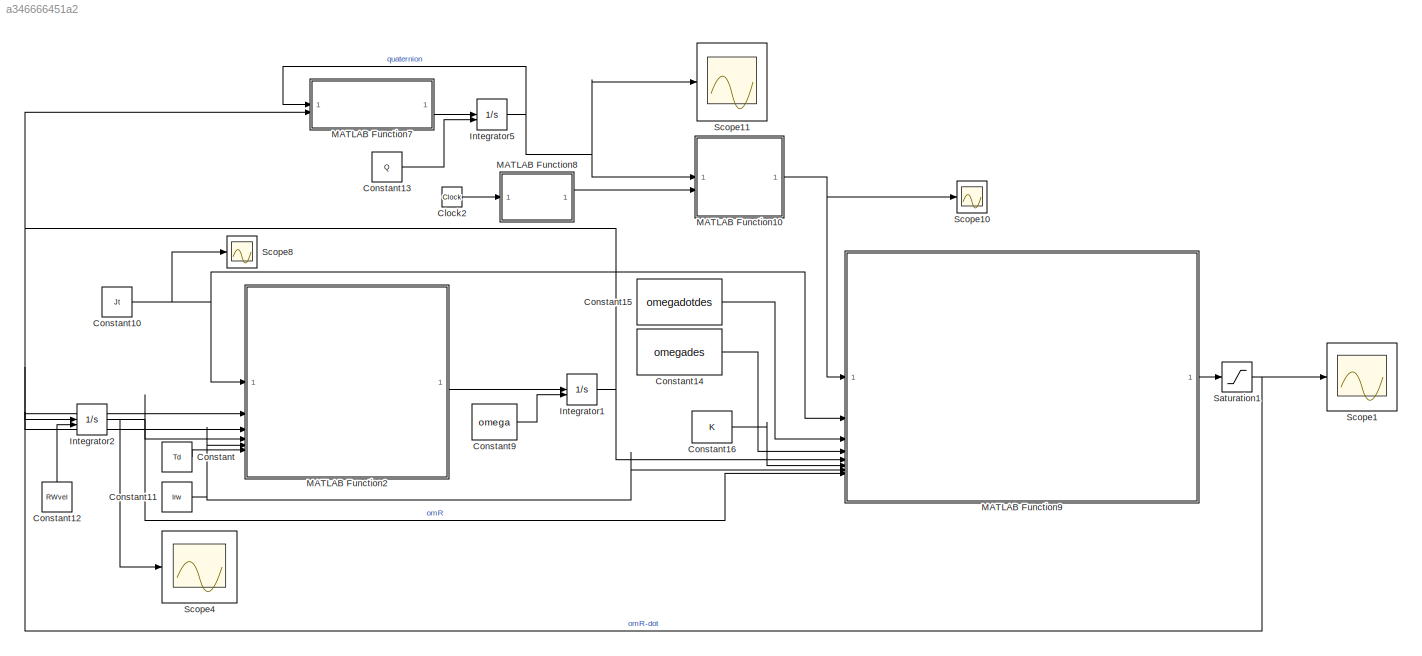
MODEL slx_a346666451a2
KIND model
CONFIG AbsTol = auto
CONFIG EnableMultiTasking = off
CONFIG FixedStep = auto
CONFIG MaxStep = auto
CONFIG MinStep = auto
CONFIG RelTol = 1e-3
CONFIG SampleTimeConstraint = Unconstrained
CONFIG SolverName = VariableStepAuto
CONFIG StartTime = 0.0
CONFIG StopTime = 200
BLOCK [Clock] Clock2
BLOCK [Constant] Constant
  Value = Td
BLOCK [Constant] Constant10
  Value = Jt
BLOCK [Constant] Constant11
  Value = Irw
BLOCK [Constant] Constant12
  NameLocation = right
  Value = RWvel
BLOCK [Constant] Constant13
  Value = Q
BLOCK [Constant] Constant14
  Value = omegades
BLOCK [Constant] Constant15
  Value = omegadotdes
BLOCK [Constant] Constant16
  Value = K
BLOCK [Constant] Constant9
  Value = omega
BLOCK [Integrator] Integrator1
  InitialConditionSource = external
BLOCK [Integrator] Integrator2
  InitialConditionSource = external
BLOCK [Integrator] Integrator5
  InitialConditionSource = external
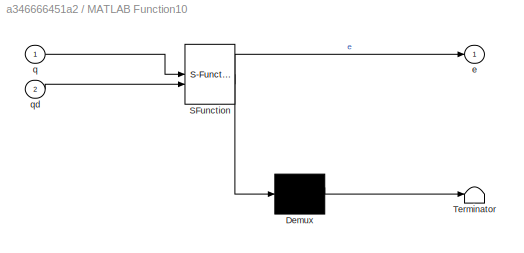
BLOCK [SubSystem] MATLAB Function10
  ErrorFcn = Stateflow.Translate.translate
  LibrarySourceBlock = simulink/User-Defined\nFunctions/MATLAB Function
  PermitHierarchicalResolution = ExplicitOnly
  SFBlockType = MATLAB Function
  TreatAsAtomicUnit = on
BLOCK [Demux] MATLAB Function10/ Demux 
  Outputs = 1
BLOCK [S-Function] MATLAB Function10/ SFunction 
  EnableBusSupport = on
  FunctionName = sf_sfun
  PortCounts = [2 2]
  SFcnIsStateOwnerBlock = off
  SFunctionDeploymentMode = off
  Tag = Stateflow S-Function 3
BLOCK [Terminator] MATLAB Function10/ Terminator 
BLOCK [Outport] MATLAB Function10/e
BLOCK [Inport] MATLAB Function10/q
BLOCK [Inport] MATLAB Function10/qd
  Port = 2
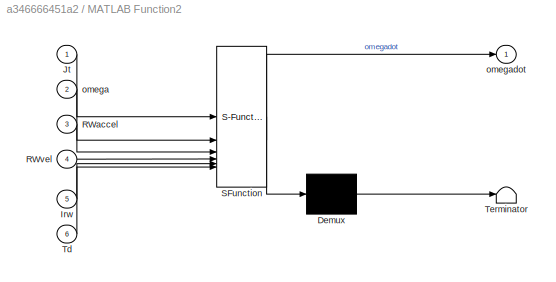
BLOCK [SubSystem] MATLAB Function2
  ErrorFcn = Stateflow.Translate.translate
  LibrarySourceBlock = simulink/User-Defined\nFunctions/MATLAB Function
  PermitHierarchicalResolution = ExplicitOnly
  SFBlockType = MATLAB Function
  TreatAsAtomicUnit = on
BLOCK [Demux] MATLAB Function2/ Demux 
  Outputs = 1
BLOCK [S-Function] MATLAB Function2/ SFunction 
  EnableBusSupport = on
  FunctionName = sf_sfun
  PortCounts = [6 2]
  SFcnIsStateOwnerBlock = off
  SFunctionDeploymentMode = off
  Tag = Stateflow S-Function 9
BLOCK [Terminator] MATLAB Function2/ Terminator 
BLOCK [Inport] MATLAB Function2/Irw
  Port = 5
BLOCK [Inport] MATLAB Function2/Jt
BLOCK [Inport] MATLAB Function2/RWaccel
  Port = 3
BLOCK [Inport] MATLAB Function2/RWvel
  Port = 4
BLOCK [Inport] MATLAB Function2/Td
  Port = 6
BLOCK [Inport] MATLAB Function2/omega
  Port = 2
BLOCK [Outport] MATLAB Function2/omegadot
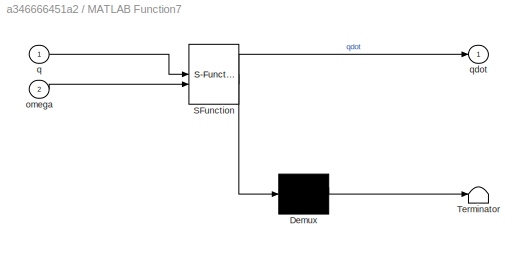
BLOCK [SubSystem] MATLAB Function7
  ErrorFcn = Stateflow.Translate.translate
  LibrarySourceBlock = simulink/User-Defined\nFunctions/MATLAB Function
  PermitHierarchicalResolution = ExplicitOnly
  SFBlockType = MATLAB Function
  TreatAsAtomicUnit = on
BLOCK [Demux] MATLAB Function7/ Demux 
  Outputs = 1
BLOCK [S-Function] MATLAB Function7/ SFunction 
  EnableBusSupport = on
  FunctionName = sf_sfun
  PortCounts = [2 2]
  SFcnIsStateOwnerBlock = off
  SFunctionDeploymentMode = off
  Tag = Stateflow S-Function 10
BLOCK [Terminator] MATLAB Function7/ Terminator 
BLOCK [Inport] MATLAB Function7/omega
  Port = 2
BLOCK [Inport] MATLAB Function7/q
BLOCK [Outport] MATLAB Function7/qdot
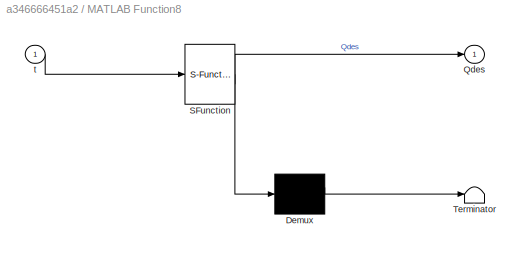
BLOCK [SubSystem] MATLAB Function8
  ErrorFcn = Stateflow.Translate.translate
  LibrarySourceBlock = simulink/User-Defined\nFunctions/MATLAB Function
  PermitHierarchicalResolution = ExplicitOnly
  SFBlockType = MATLAB Function
  TreatAsAtomicUnit = on
BLOCK [Demux] MATLAB Function8/ Demux 
  Outputs = 1
BLOCK [S-Function] MATLAB Function8/ SFunction 
  EnableBusSupport = on
  FunctionName = sf_sfun
  PortCounts = [1 2]
  SFcnIsStateOwnerBlock = off
  SFunctionDeploymentMode = off
  Tag = Stateflow S-Function 8
BLOCK [Terminator] MATLAB Function8/ Terminator 
BLOCK [Outport] MATLAB Function8/Qdes
BLOCK [Inport] MATLAB Function8/t
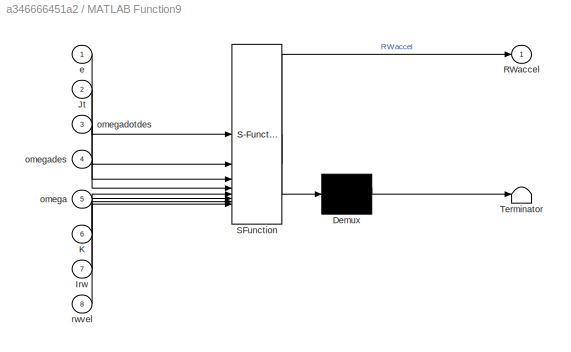
BLOCK [SubSystem] MATLAB Function9
  ErrorFcn = Stateflow.Translate.translate
  LibrarySourceBlock = simulink/User-Defined\nFunctions/MATLAB Function
  PermitHierarchicalResolution = ExplicitOnly
  SFBlockType = MATLAB Function
  TreatAsAtomicUnit = on
BLOCK [Demux] MATLAB Function9/ Demux 
  Outputs = 1
BLOCK [S-Function] MATLAB Function9/ SFunction 
  EnableBusSupport = on
  FunctionName = sf_sfun
  PortCounts = [8 2]
  SFcnIsStateOwnerBlock = off
  SFunctionDeploymentMode = off
  Tag = Stateflow S-Function 12
BLOCK [Terminator] MATLAB Function9/ Terminator 
BLOCK [Inport] MATLAB Function9/Irw
  Port = 7
BLOCK [Inport] MATLAB Function9/Jt
  Port = 2
BLOCK [Inport] MATLAB Function9/K
  Port = 6
BLOCK [Outport] MATLAB Function9/RWaccel
BLOCK [Inport] MATLAB Function9/e
BLOCK [Inport] MATLAB Function9/omega
  Port = 5
BLOCK [Inport] MATLAB Function9/omegades
  Port = 4
BLOCK [Inport] MATLAB Function9/omegadotdes
  Port = 3
BLOCK [Inport] MATLAB Function9/rwvel
  Port = 8
BLOCK [Saturate] Saturation1
  LinearizeAsGain = off
  LowerLimit = -176
  RndMeth = Ceiling
  UpperLimit = 176
BLOCK [Scope] Scope1
  Floating = off
  NumInputPorts = 1
  ScopeSpecificationString = Simulink.scopes.TimeScopeBlockCfg('CurrentConfiguration', extmgr.ConfigurationSet(extmgr.Configuration('Core','General UI',true),extmgr.Configuration('Core','Source UI',true),extmgr.Configuration('Sources','WiredSimulink',true,'DataLoggingVariableName','ScopeData1'),extmgr.Configuration('Visuals','Time Domain',true,'SerializedDisplays',{struct('MinYLimReal','-220.00000','MaxYLimReal','220.00000','...<+1557ch>
BLOCK [Scope] Scope10
  Floating = off
  NumInputPorts = 1
  ScopeSpecificationString = Simulink.scopes.TimeScopeBlockCfg('CurrentConfiguration', extmgr.ConfigurationSet(extmgr.Configuration('Core','General UI',true),extmgr.Configuration('Core','Source UI',true),extmgr.Configuration('Sources','WiredSimulink',true,'DataLoggingVariableName','ScopeData2'),extmgr.Configuration('Visuals','Time Domain',true,'SerializedDisplays',{struct('MinYLimReal','-1.125','MaxYLimReal','0.125','YLabelRe...<+1530ch>
BLOCK [Scope] Scope11
  Floating = off
  NumInputPorts = 1
  ScopeSpecificationString = Simulink.scopes.TimeScopeBlockCfg('CurrentConfiguration', extmgr.ConfigurationSet(extmgr.Configuration('Core','General UI',true,'FigureColor',[1 1 1]),extmgr.Configuration('Core','Source UI',true),extmgr.Configuration('Sources','WiredSimulink',true,'DataLoggingVariableName','ScopeData3'),extmgr.Configuration('Visuals','Time Domain',true,'SerializedDisplays',{struct('MinYLimReal','-0.125','MaxYLimR...<+2009ch>
BLOCK [Scope] Scope4
  Floating = off
  NumInputPorts = 1
  ScopeSpecificationString = Simulink.scopes.TimeScopeBlockCfg('CurrentConfiguration', extmgr.ConfigurationSet(extmgr.Configuration('Core','General UI',true,'FigureColor',[1 1 1]),extmgr.Configuration('Core','Source UI',true),extmgr.Configuration('Sources','WiredSimulink',true,'DataLoggingVariableName','ScopeData4'),extmgr.Configuration('Visuals','Time Domain',true,'SerializedDisplays',{struct('MinYLimReal','-1405.15219','Max...<+1800ch>
BLOCK [Scope] Scope8
  Floating = off
  NumInputPorts = 1
  ScopeSpecificationString = Simulink.scopes.TimeScopeBlockCfg('CurrentConfiguration', extmgr.ConfigurationSet(extmgr.Configuration('Core','General UI',true),extmgr.Configuration('Core','Source UI',true),extmgr.Configuration('Sources','WiredSimulink',true),extmgr.Configuration('Visuals','Time Domain',true,'SerializedDisplays',{struct('MinYLimReal','-0.02312','MaxYLimReal','0.20813','YLabelReal','','MinYLimMag','0.00000','MaxY...<+1773ch>
LINE Clock2:1 -> MATLAB Function8:1
NET Constant10:1 -> MATLAB Function2:1, MATLAB Function9:2, Scope8:1
NET Constant11:1 -> MATLAB Function2:5, MATLAB Function9:7
LINE Constant12:1 -> Integrator2:2
LINE Constant13:1 -> Integrator5:2
LINE Constant14:1 -> MATLAB Function9:4
LINE Constant15:1 -> MATLAB Function9:3
LINE Constant16:1 -> MATLAB Function9:6
LINE Constant9:1 -> Integrator1:2
LINE Constant:1 -> MATLAB Function2:6
NET Integrator1:1 -> MATLAB Function2:2, MATLAB Function7:2, MATLAB Function9:5
NET Integrator2:1 -> MATLAB Function2:4, MATLAB Function9:8, Scope4:1
NET Integrator5:1 -> MATLAB Function10:1, MATLAB Function7:1, Scope11:1
NET MATLAB Function10:1 -> MATLAB Function9:1, Scope10:1
LINE MATLAB Function2:1 -> Integrator1:1
LINE MATLAB Function7:1 -> Integrator5:1
LINE MATLAB Function8:1 -> MATLAB Function10:2
LINE MATLAB Function9:1 -> Saturation1:1
NET Saturation1:1 -> Integrator2:1, MATLAB Function2:3, Scope1:1
note: NET lines group one-source signal fan-out (src -> all destinations, sorted); 1:1 wires keep LINE
CHART MATLAB Function10 states=1 transitions=1
  STATE_LABEL 'eML_blk_kernel()'
  STATE_LABEL 'SCRIPT:\nfunction e = trajectory(q,qd)\nqd1=qd(1);qd2=qd(2);qd3=qd(3);qd4=qd(4);\nqe=[qd4 qd3 -qd2 -qd1;-qd3 qd4 qd1 -qd2;qd2 -qd1 qd4 -qd3;qd1 qd2 qd3 qd4]*q;\ne=qe(1:3);\n\n'
CHART MATLAB Function8 states=1 transitions=1
  STATE_LABEL 'eML_blk_kernel()'
  STATE_LABEL 'SCRIPT:\nfunction Qdes = trajectory(t)\n\n Qdes=[1;0;0;0];'
CHART MATLAB Function2 states=1 transitions=1
  STATE_LABEL 'eML_blk_kernel()'
  STATE_LABEL 'SCRIPT:\nfunction omegadot = MotionEquation(Jt,omega,RWaccel,RWvel,Irw , Td)\nalpha=RWaccel;\nw=RWvel;\nTc=0;\nomegadot=Jt^-1*(Tc+Td-Irw*alpha-omega.*(Jt*omega+Irw*w));'
CHART MATLAB Function7 states=1 transitions=1
  STATE_LABEL 'eML_blk_kernel()'
  STATE_LABEL 'SCRIPT:\nfunction qdot = quatdot(q,omega)\nwB1=omega(1);wB2=omega(2);wB3=omega(3);\n\nqdot=0.5*[0 wB3 -wB2 wB1;-wB3 0 wB1 wB2;wB2 -wB1 0 wB3;-wB1 -wB2 -wB3 0]*q;'
CHART MATLAB Function9 states=1 transitions=1
  STATE_LABEL 'eML_blk_kernel()'
  STATE_LABEL 'SCRIPT:\nfunction RWaccel  = controlSolution(e,Jt,omegadotdes,omegades,omega,K,Irw,rwvel)\nw=rwvel;\nTB=zeros(3,1);\nA=0.5*omega+omegades+w;\nomega_e=omega-omegades;\nB=-Jt*omegadotdes+e+K*omega_e-omega.*(Jt*omega+Irw*w)+TB;\nA1=A(1);A2=A(2);A3=A(3);\n\n\nRWaccel=Irw^-1*B;\n'
CHART  states=0 transitions=0
CHART  states=0 transitions=0
CHART  states=0 transitions=0
CHART  states=0 transitions=0
CHART  states=0 transitions=0
